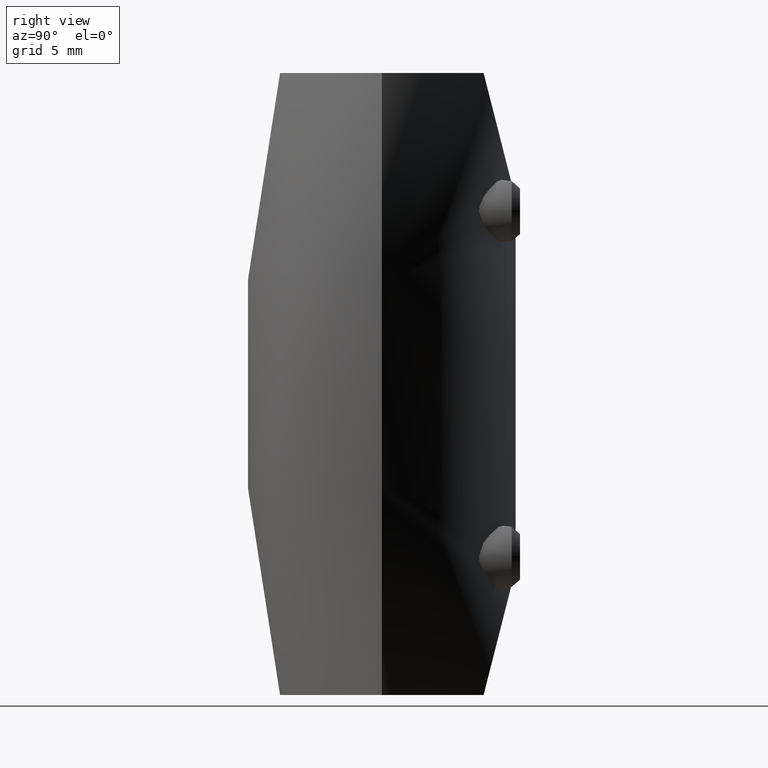
[diagram: clean part render]
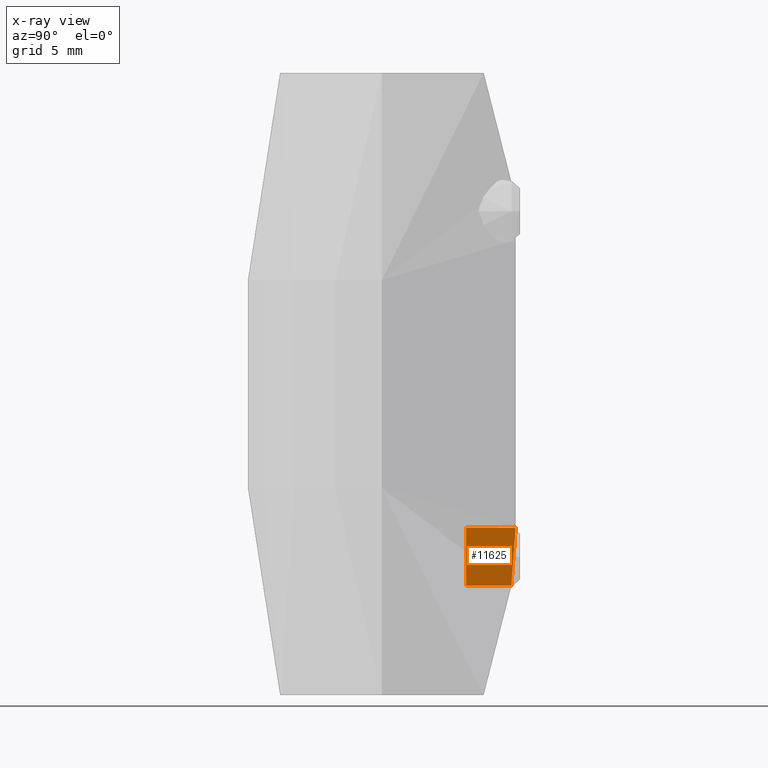
[diagram: x-ray — body ghosted, one internal face saturated and labeled with its STEP entity id]
A machine part, right view, then the same camera in x-ray: the body is ghosted and one INTERNAL B-rep face — a face not visible from any outside direction — is saturated and labeled: STEP entity #11625.
In plain terms, the highlighted cylindrical surface (edge-blend (fillet) strip) has radius 2.1 mm, axis along (0, 1, 0).
Its self-contained STEP definition (entity closure, byte-faithful):
#123 = CARTESIAN_POINT ( 'NONE',  ( 2.086146326064370005, 5.732261437502690349, -12.77747112079052982 ) ) ;
#184 = CARTESIAN_POINT ( 'NONE',  ( 2.099929183836256819, 5.727154391887659735, -12.36074635091505769 ) ) ;
#297 = CARTESIAN_POINT ( 'NONE',  ( 2.086353115390130242, 5.732186663248780789, -12.22375920416043016 ) ) ;
#406 = CARTESIAN_POINT ( 'NONE',  ( 1.578786875738130036, 9.505905379669991717, -11.10864072254513246 ) ) ;
#575 = CARTESIAN_POINT ( 'NONE',  ( 0.6787205263803114397, 9.650971583740812321, -10.50801803250513267 ) ) ;
#1002 = CARTESIAN_POINT ( 'NONE',  ( -3.307893688343650374E-15, 6.099999999999999645, -10.40000000000000391 ) ) ;
#1141 = EDGE_CURVE ( 'NONE', #10874, #10137, #14956, .T. ) ;
#1200 = VECTOR ( 'NONE', #9887, 1000.000000000000000 ) ;
#1378 = CARTESIAN_POINT ( 'NONE',  ( 1.820428347226963339, 5.822568414209187360, -13.55574576292280931 ) ) ;
#1552 = CARTESIAN_POINT ( 'NONE',  ( 2.100695984247384462, 9.294575166331815907, -12.62786502260579979 ) ) ;
#1614 = CARTESIAN_POINT ( 'NONE',  ( 1.585153492562540345, 9.296747008603590601, -13.88425971308387119 ) ) ;
#1773 = CARTESIAN_POINT ( 'NONE',  ( 0.5459520776133864883, 9.662026691055704219, -10.46748631824512721 ) ) ;
#2705 = EDGE_LOOP ( 'NONE', ( #6410, #7973, #10330, #15305 ) ) ;
#2711 = CARTESIAN_POINT ( 'NONE',  ( 0.2772701739209479377, 6.095196297348191905, -10.41383982470042469 ) ) ;
#2767 = CARTESIAN_POINT ( 'NONE',  ( 2.032009371235959705, 5.751675510634661315, -11.95217136384320256 ) ) ;
#2889 = CARTESIAN_POINT ( 'NONE',  ( 1.890511096770831401, 9.277053517583677689, -13.42470901621619994 ) ) ;
#2942 = CARTESIAN_POINT ( 'NONE',  ( 1.826148271938575762, 9.280226524998141713, -13.54601722775390016 ) ) ;
#3001 = CARTESIAN_POINT ( 'NONE',  ( 2.030257740822122514, 9.360963020918406485, -11.94617357270240099 ) ) ;
#3264 = CARTESIAN_POINT ( 'NONE',  ( 0.1376148497626017431, 9.680643100799192879, -10.40000000000008029 ) ) ;
#3996 = CARTESIAN_POINT ( 'NONE',  ( 1.055308459895667905, 6.009139407891244566, -10.67926559959047239 ) ) ;
#4052 = CARTESIAN_POINT ( 'NONE',  ( 0.6802397028353134312, 6.063294438266920494, -14.49148717097066985 ) ) ;
#4109 = CARTESIAN_POINT ( 'NONE',  ( 1.668769855632323607, 5.867833456606182274, -13.78209424468322020 ) ) ;
#4167 = CARTESIAN_POINT ( 'NONE',  ( 2.084906485001587928, 9.329340996348154391, -12.21393155619730742 ) ) ;
#4222 = CARTESIAN_POINT ( 'NONE',  ( 1.294266776713115963, 9.318784099871624704, -14.17643064386742857 ) ) ;
#4548 = VERTEX_POINT ( 'NONE', #11900 ) ;
#5229 = CARTESIAN_POINT ( 'NONE',  ( 1.677677386067423226, 5.868100917969193198, -11.20801064432147420 ) ) ;
#5350 = CARTESIAN_POINT ( 'NONE',  ( 1.387756609791117590, 5.940879531399149371, -14.08201729386574108 ) ) ;
#5516 = CARTESIAN_POINT ( 'NONE',  ( 1.989265995586301905, 9.379411483117442216, -11.81334349079564916 ) ) ;
#6350 = VECTOR ( 'NONE', #11738, 1000.000000000000000 ) ;
#6410 = ORIENTED_EDGE ( 'NONE', *, *, #8884, .F. ) ;
#6477 = CARTESIAN_POINT ( 'NONE',  ( 2.100070268869635992, 5.727102659412969921, -12.63710952454331427 ) ) ;
#6598 = CARTESIAN_POINT ( 'NONE',  ( 0.5471819783539447757, 6.076914392610606619, -10.46787428811189180 ) ) ;
#6656 = CARTESIAN_POINT ( 'NONE',  ( 1.991113001347427414, 5.766154489017580431, -11.81872781713069820 ) ) ;
#6658 = CARTESIAN_POINT ( 'NONE',  ( 0.5526714224160352851, 9.361994497154752182, -14.54448547910995515 ) ) ;
#6716 = CARTESIAN_POINT ( 'NONE',  ( 1.991941063697440173, 5.765875405480469063, -13.17921701783333255 ) ) ;
#7787 = CARTESIAN_POINT ( 'NONE',  ( 1.885538759467741743, 5.801542206975099703, -13.43483075746540223 ) ) ;
#7850 = CARTESIAN_POINT ( 'NONE',  ( -2.779005389710500088E-15, 6.099999999999999645, -14.59999999999999254 ) ) ;
#7966 = CARTESIAN_POINT ( 'NONE',  ( 1.995436259593541317, 9.275647231858052066, -13.16884460496032005 ) ) ;
#7973 = ORIENTED_EDGE ( 'NONE', *, *, #1141, .F. ) ;
#8020 = CARTESIAN_POINT ( 'NONE',  ( 0.9350675992432300188, 6.029266378381555214, -10.61464416559220325 ) ) ;
#8049 = CYLINDRICAL_SURFACE ( 'NONE', #12234, 2.099999999999992539 ) ;
#8296 = CARTESIAN_POINT ( 'NONE',  ( 1.057167187225450444, 9.609527499865132327, -10.66505793408276048 ) ) ;
#8851 = DIRECTION ( 'NONE',  ( -0.000000000000000000, 1.000000000000000000, -0.000000000000000000 ) ) ;
#8884 = EDGE_CURVE ( 'NONE', #10137, #14931, #10672, .T. ) ;
#9259 = CARTESIAN_POINT ( 'NONE',  ( 2.087723741642880437, 9.286961891204070341, -12.76508142243564770 ) ) ;
#9311 = CARTESIAN_POINT ( 'NONE',  ( 2.031984545106718443, 5.751683796079173128, -13.04775498635070363 ) ) ;
#9315 = CARTESIAN_POINT ( 'NONE',  ( -2.383408864363069303E-11, 9.370038787228322619, -14.59999999999999076 ) ) ;
#9376 = CARTESIAN_POINT ( 'NONE',  ( 1.059661586120418164, 9.336365235797424944, -14.33370769163123981 ) ) ;
#9436 = CARTESIAN_POINT ( 'NONE',  ( -2.383408864363069303E-11, 9.370038787228322619, -14.59999999999999076 ) ) ;
#9887 = DIRECTION ( 'NONE',  ( -0.000000000000000000, 1.000000000000000000, -0.000000000000000000 ) ) ;
#10137 = VERTEX_POINT ( 'NONE', #12617 ) ;
#10318 = CARTESIAN_POINT ( 'NONE',  ( 0.2769710748706044057, 6.095234972311342148, -14.58627641291484878 ) ) ;
#10330 = ORIENTED_EDGE ( 'NONE', *, *, #15964, .T. ) ;
#10484 = CARTESIAN_POINT ( 'NONE',  ( 0.1399064094182313478, 6.099999999999998757, -10.40000000000000568 ) ) ;
#10601 = CARTESIAN_POINT ( 'NONE',  ( 1.673885357071529967, 9.290036451405692119, -13.77556942705746401 ) ) ;
#10672 = LINE ( 'NONE', #11012, #1200 ) ;
#10712 = CARTESIAN_POINT ( 'NONE',  ( 2.035422583464700619, 9.277496619412159973, -13.03470878865204519 ) ) ;
#10874 = VERTEX_POINT ( 'NONE', #1002 ) ;
#11012 = CARTESIAN_POINT ( 'NONE',  ( -2.778590255138469156E-15, 10.00000000000000000, -14.59999999999999076 ) ) ;
#11624 = CARTESIAN_POINT ( 'NONE',  ( 1.282820151451850466, 5.964707360120296897, -14.16824076934049614 ) ) ;
#11625 = ADVANCED_FACE ( 'NONE', ( #12285 ), #8049, .F. ) ;
#11738 = DIRECTION ( 'NONE',  ( -0.000000000000000000, 1.000000000000000000, -0.000000000000000000 ) ) ;
#11740 = CARTESIAN_POINT ( 'NONE',  ( 0.1378113424345899229, 6.099999999999998757, -14.59999999999998899 ) ) ;
#11795 = CARTESIAN_POINT ( 'NONE',  ( 1.055924465466267392, 6.009025291682001502, -14.32035115532429970 ) ) ;
#11900 = CARTESIAN_POINT ( 'NONE',  ( 1.152828540230497767E-12, 9.680643100799230183, -10.40000000000000391 ) ) ;
#11911 = CARTESIAN_POINT ( 'NONE',  ( 2.099246808198220293, 9.315931660475524012, -12.35021375060222404 ) ) ;
#12019 = CARTESIAN_POINT ( 'NONE',  ( 1.290205285977146454, 9.569769568118140057, -10.82096311181452819 ) ) ;
#12234 = AXIS2_PLACEMENT_3D ( 'NONE', #16701, #8851, #15387 ) ;
#12285 = FACE_OUTER_BOUND ( 'NONE', #2705, .T. ) ;
#12301 = CARTESIAN_POINT ( 'NONE',  ( 1.152828540230497767E-12, 9.680643100799230183, -10.40000000000000391 ) ) ;
#12617 = CARTESIAN_POINT ( 'NONE',  ( -2.779005389710500088E-15, 6.099999999999999645, -14.59999999999999254 ) ) ;
#12624 = LINE ( 'NONE', #13090, #6350 ) ;
#12929 = CARTESIAN_POINT ( 'NONE',  ( 0.5491258225381930869, 6.076764202684191041, -14.53167986612596074 ) ) ;
#12982 = CARTESIAN_POINT ( 'NONE',  ( 0.9330721577100680175, 6.029563984811700195, -14.38629890366307507 ) ) ;
#13034 = CARTESIAN_POINT ( 'NONE',  ( -3.307893688343650374E-15, 6.099999999999999645, -10.40000000000000391 ) ) ;
#13090 = CARTESIAN_POINT ( 'NONE',  ( -3.035766082959412415E-15, 10.00000000000000000, -10.40000000000000568 ) ) ;
#13147 = CARTESIAN_POINT ( 'NONE',  ( 1.580948150800842722, 5.892412151156408484, -13.88897446721983897 ) ) ;
#13211 = CARTESIAN_POINT ( 'NONE',  ( 1.666833675596331332, 9.483539406582341513, -11.21537220285376080 ) ) ;
#13462 = EDGE_CURVE ( 'NONE', #14931, #4548, #14771, .T. ) ;
#14218 = CARTESIAN_POINT ( 'NONE',  ( 0.6811654870470746914, 6.063201963970244357, -10.50878639600218811 ) ) ;
#14336 = CARTESIAN_POINT ( 'NONE',  ( 1.833544281745222770, 5.818968093080491677, -11.44039325595551304 ) ) ;
#14394 = CARTESIAN_POINT ( 'NONE',  ( 0.2752460828462246489, 9.370038787228766708, -14.60000000000311537 ) ) ;
#14562 = CARTESIAN_POINT ( 'NONE',  ( 1.883493892276262960, 9.418987168370621887, -11.56131628298629010 ) ) ;
#14669 = CARTESIAN_POINT ( 'NONE',  ( 0.2743339928065674505, 9.676888800271552071, -10.41339596521958022 ) ) ;
#14771 = B_SPLINE_CURVE_WITH_KNOTS ( 'NONE', 3,
 ( #9315, #14394, #6658, #9376, #4222, #1614, #10601, #2942, #2889, #7966, #10712, #9259, #1552, #11911, #4167, #3001, #5516, #14562, #15846, #13211, #406, #12019, #8296, #575, #1773, #14669, #3264, #12301 ),
 .UNSPECIFIED., .F., .F.,
 ( 4, 2, 2, 2, 2, 2, 2, 2, 2, 2, 2, 2, 2, 4 ),
 ( 0.001638509133111823012, 0.002462824094177143257, 0.003287139055242463935, 0.003699296535775123840, 0.004111454016307783746, 0.004523611496840444085, 0.004935768977373103557, 0.005347926457905763029, 0.005760083938438423368, 0.006172241418971083707, 0.006584398899503744046, 0.007408713860569064724, 0.007820871341101725063, 0.008233028821634387137 ),
 .UNSPECIFIED. ) ;
#14931 = VERTEX_POINT ( 'NONE', #9436 ) ;
#14956 = B_SPLINE_CURVE_WITH_KNOTS ( 'NONE', 3,
 ( #13034, #10484, #2711, #6598, #14218, #8020, #3996, #15738, #15625, #5229, #14336, #6656, #2767, #297, #184, #6477, #123, #9311, #6716, #7787, #1378, #4109, #13147, #5350, #11624, #11795, #12982, #4052, #12929, #10318, #11740, #7850 ),
 .UNSPECIFIED., .F., .F.,
 ( 4, 2, 2, 2, 2, 2, 2, 2, 2, 2, 2, 2, 2, 2, 2, 4 ),
 ( 5.412196886783441991E-19, 0.0004135362334328362586, 0.0008270724668656719751, 0.001240608700298507583, 0.001654144933731343300, 0.002481217400597017769, 0.002894753634029852401, 0.003308289867462687467, 0.003721826100895522533, 0.004135362334328358466, 0.004548898567761193099, 0.004962434801194027731, 0.005375971034626863231, 0.005789507268059697863, 0.006203043501492533363, 0.006616579734925367995 ),
 .UNSPECIFIED. ) ;
#15305 = ORIENTED_EDGE ( 'NONE', *, *, #13462, .F. ) ;
#15387 = DIRECTION ( 'NONE',  ( 0.000000000000000000, 0.000000000000000000, 1.000000000000000000 ) ) ;
#15625 = CARTESIAN_POINT ( 'NONE',  ( 1.389598892436099353, 5.940439156067385262, -10.91966003819826625 ) ) ;
#15738 = CARTESIAN_POINT ( 'NONE',  ( 1.282807976704160913, 5.964715924828530191, -10.83172142695945794 ) ) ;
#15846 = CARTESIAN_POINT ( 'NONE',  ( 1.818999919646612895, 9.440088896443549871, -11.44177395060016345 ) ) ;
#15964 = EDGE_CURVE ( 'NONE', #10874, #4548, #12624, .T. ) ;
#16701 = CARTESIAN_POINT ( 'NONE',  ( -3.035766082959412415E-15, 10.00000000000000000, -12.49999999999999822 ) ) ;